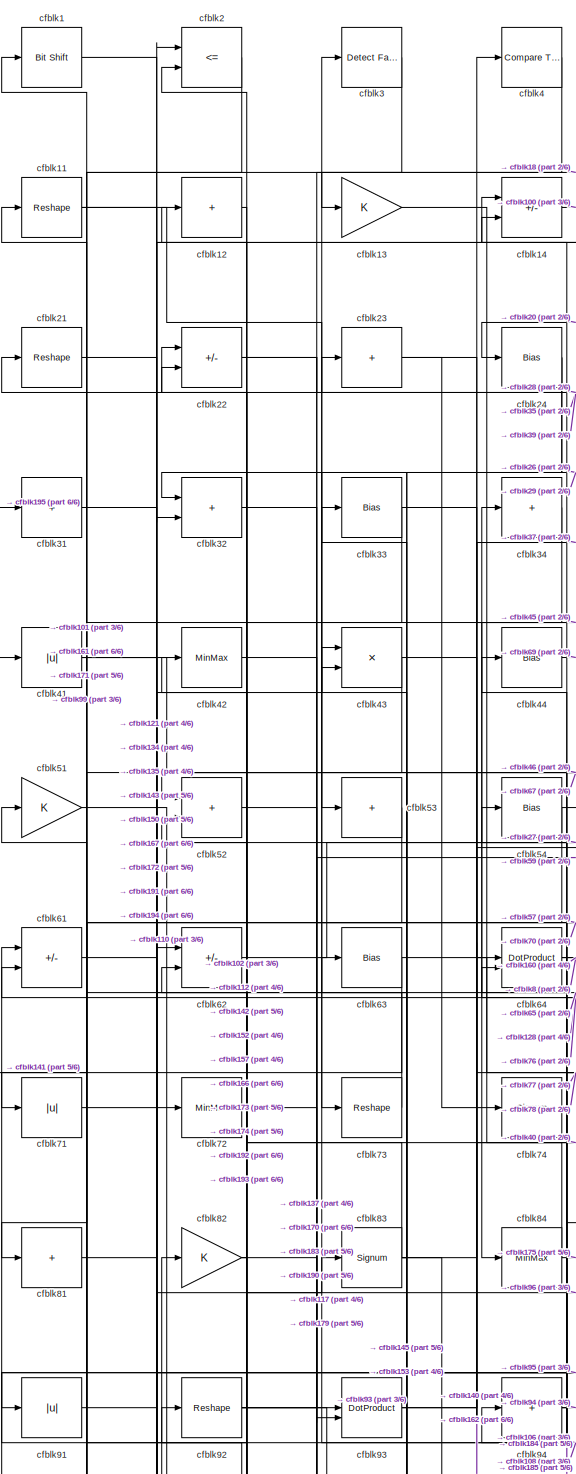
[diagram: root canvas - part 1/6, top left region]
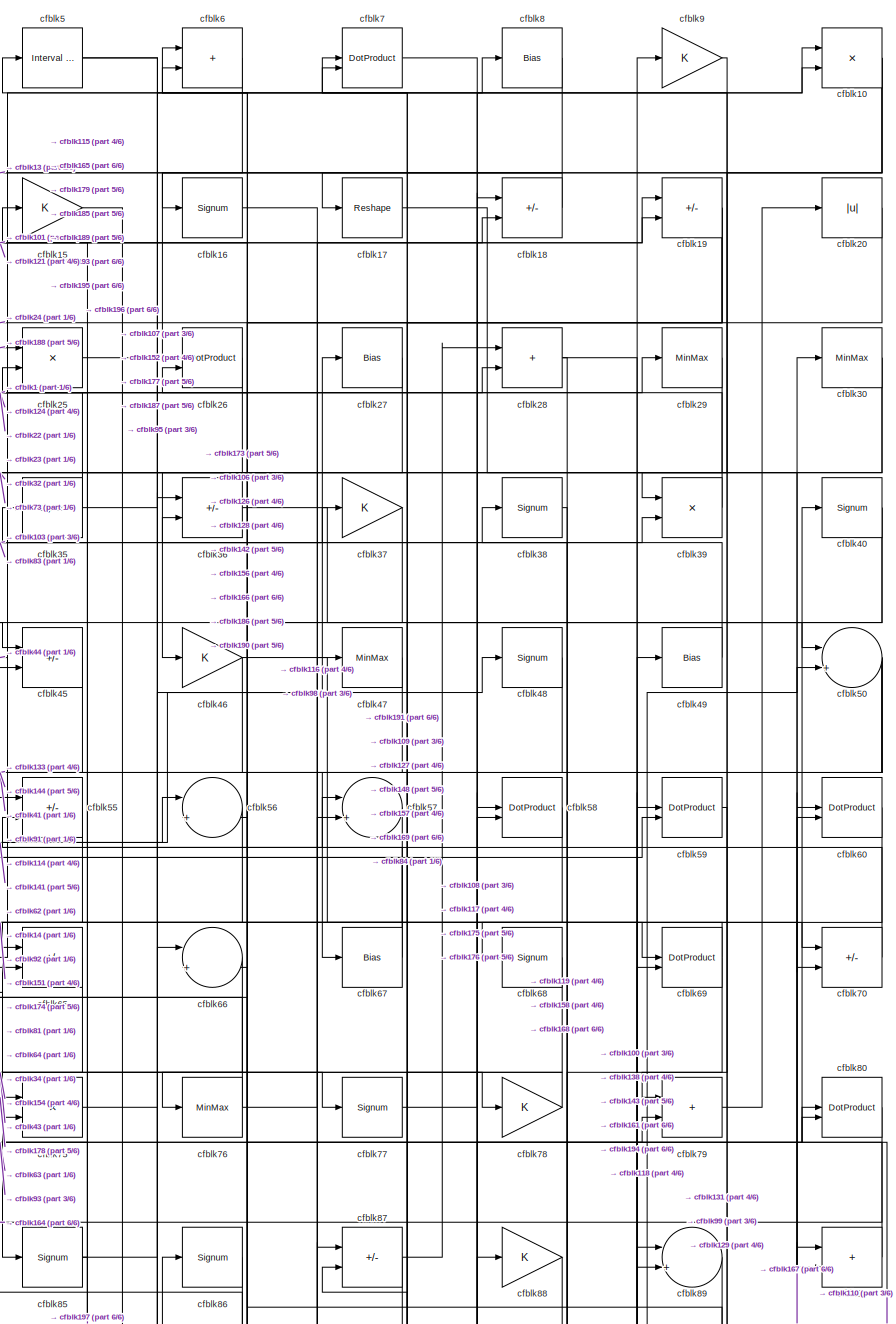
[diagram: root canvas - part 2/6, top right region]
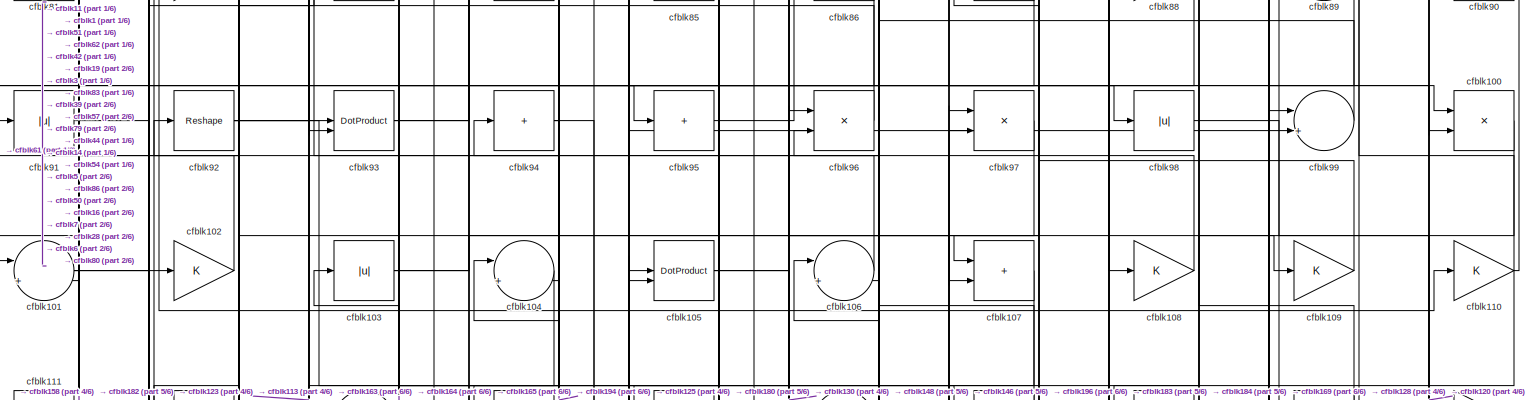
[diagram: root canvas - part 3/6, full width, middle band]
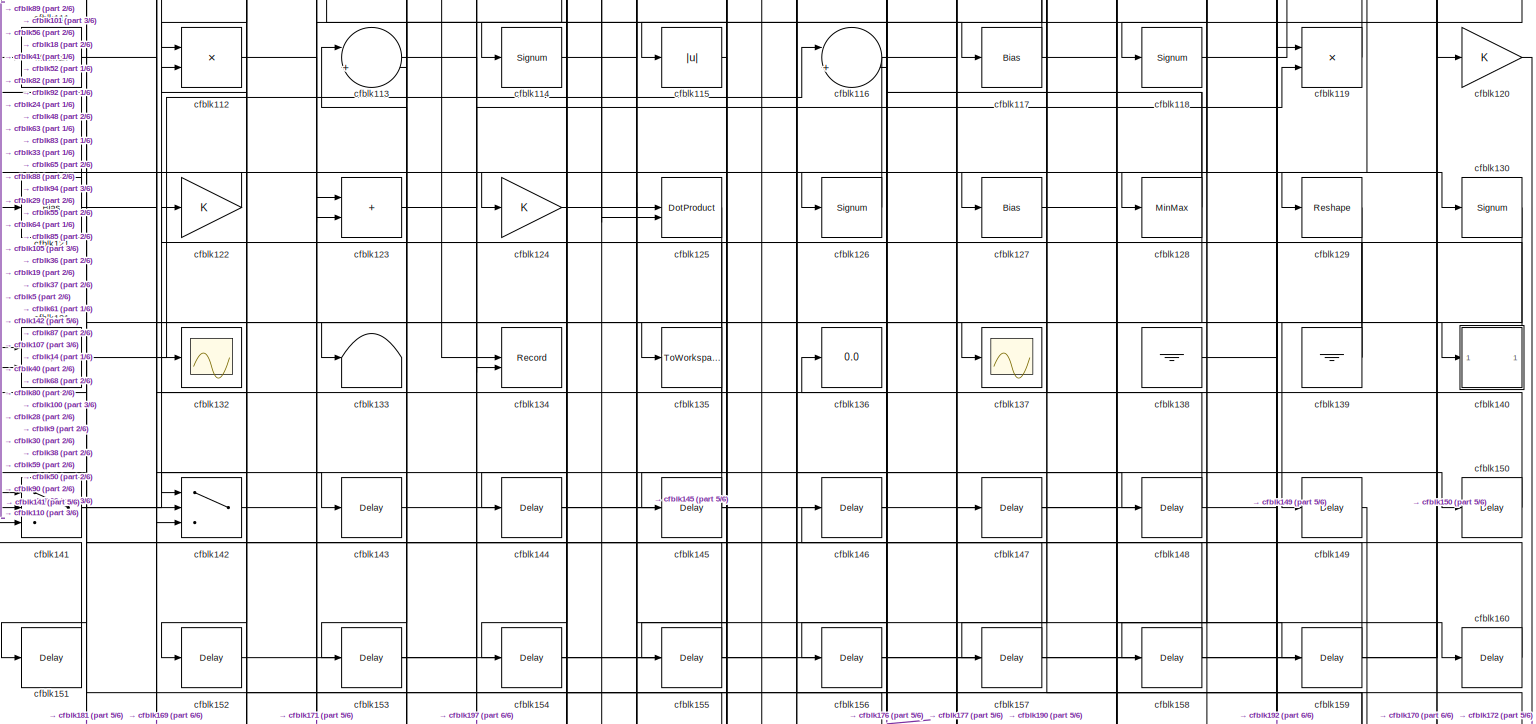
[diagram: root canvas - part 4/6, full width, bottom band]
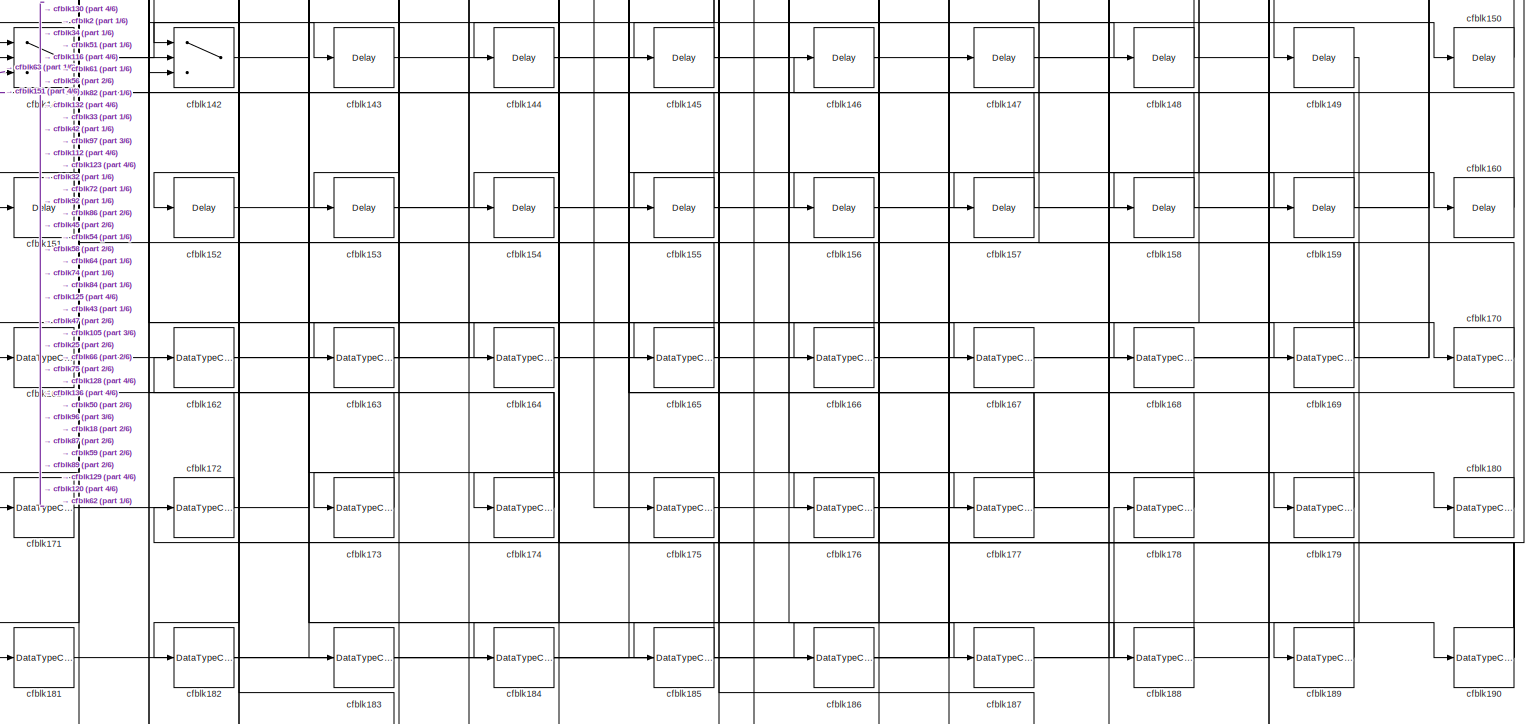
[diagram: root canvas - part 5/6, full width, bottom band]
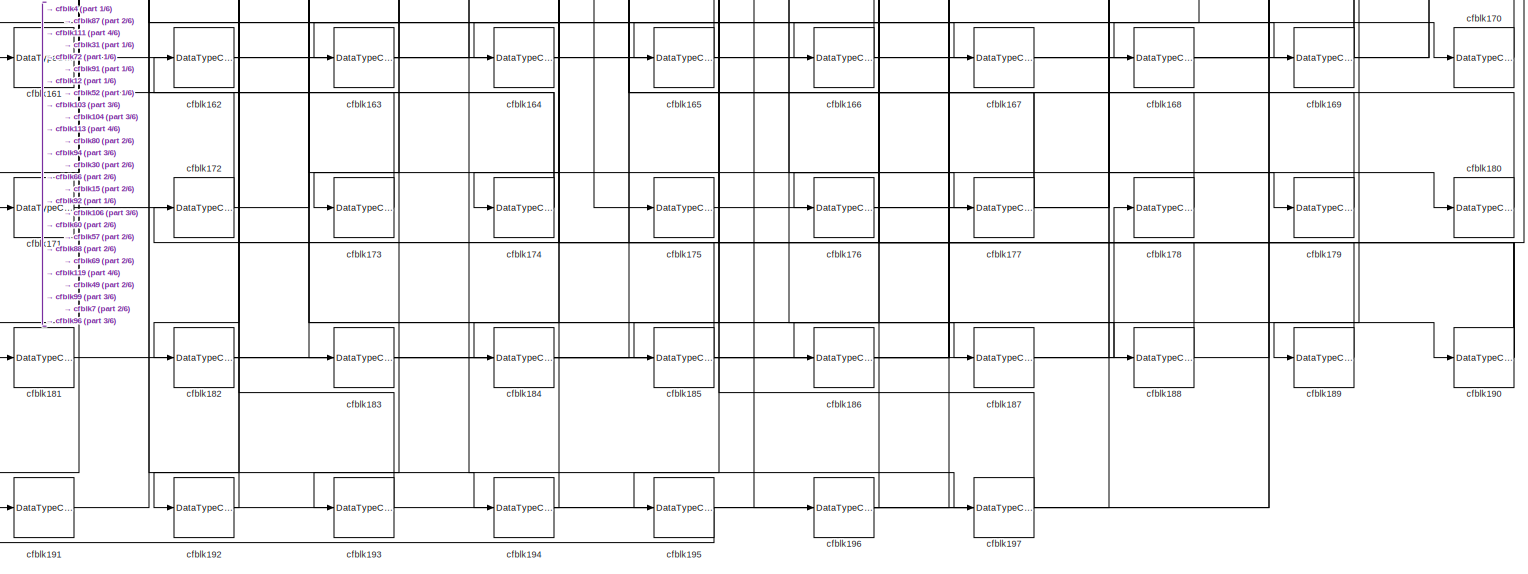
[diagram: root canvas - part 6/6, full width, bottom band]
MODEL slx_d920cc30b808
KIND model
CONFIG AbsTol = auto
CONFIG EnableMultiTasking = off
CONFIG FixedStep = auto
CONFIG MaxStep = auto
CONFIG MinStep = auto
CONFIG RelTol = 1e-3
CONFIG SampleTimeConstraint = Unconstrained
CONFIG SolverName = VariableStepAuto
CONFIG StartTime = 0.0
CONFIG StopTime = 10.0
BLOCK [Reference] cfblk1  REF=hdlsllib/Logic and Bit
Operations/Bit Shift
  SourceBlock = hdlsllib/Logic and Bit\nOperations/Bit Shift
  SourceType = Bit Shift
BLOCK [Product] cfblk10
  Inputs = */
  RndMeth = Zero
  SaturateOnIntegerOverflow = on
BLOCK [Product] cfblk100
  Inputs = */
  RndMeth = Zero
  SaturateOnIntegerOverflow = on
BLOCK [Sum] cfblk101
  Inputs = |++
BLOCK [Gain] cfblk102
BLOCK [Abs] cfblk103
  SaturateOnIntegerOverflow = off
BLOCK [Sum] cfblk104
  Inputs = |++
BLOCK [DotProduct] cfblk105
  OutDataTypeStr = Inherit: Inherit via internal rule
BLOCK [Sum] cfblk106
  Inputs = |++
BLOCK [Sum] cfblk107
  IconShape = rectangular
BLOCK [Gain] cfblk108
BLOCK [Gain] cfblk109
BLOCK [Reshape] cfblk11
BLOCK [Gain] cfblk110
BLOCK [MinMax] cfblk111
BLOCK [Product] cfblk112
  Inputs = */
  RndMeth = Zero
  SaturateOnIntegerOverflow = on
BLOCK [Sum] cfblk113
  Inputs = |++
BLOCK [Signum] cfblk114
BLOCK [Abs] cfblk115
  SaturateOnIntegerOverflow = off
BLOCK [Sum] cfblk116
  Inputs = |++
BLOCK [Bias] cfblk117
  Bias = 0.0
  SaturateOnIntegerOverflow = off
BLOCK [Signum] cfblk118
BLOCK [Product] cfblk119
  Inputs = */
  RndMeth = Zero
  SaturateOnIntegerOverflow = on
BLOCK [Sum] cfblk12
  IconShape = rectangular
  Inputs = +
BLOCK [Gain] cfblk120
BLOCK [Bias] cfblk121
  Bias = 0.0
  SaturateOnIntegerOverflow = off
BLOCK [Gain] cfblk122
BLOCK [Sum] cfblk123
  IconShape = rectangular
BLOCK [Gain] cfblk124
BLOCK [DotProduct] cfblk125
  OutDataTypeStr = Inherit: Inherit via internal rule
BLOCK [Signum] cfblk126
BLOCK [Bias] cfblk127
  Bias = 0.0
  SaturateOnIntegerOverflow = off
BLOCK [MinMax] cfblk128
BLOCK [Reshape] cfblk129
BLOCK [Gain] cfblk13
BLOCK [Signum] cfblk130
BLOCK [Sum] cfblk131
  IconShape = rectangular
  Inputs = +-
BLOCK [Scope] cfblk132
  Floating = off
  NumInputPorts = 1
  ScopeSpecificationString = Simulink.scopes.TimeScopeBlockCfg('CurrentConfiguration', extmgr.ConfigurationSet(extmgr.Configuration('Core','General UI',true),extmgr.Configuration('Core','Source UI',true),extmgr.Configuration('Sources','WiredSimulink',true,'DataLoggingVariableName','ScopeData2','DataLoggingSaveFormat','Array','DataLoggingLimitDataPoints',true,'DataLoggingDecimation','1'),extmgr.Configuration('Visuals','Time Do...<+868ch>
BLOCK [Terminator] cfblk133
BLOCK [Record] cfblk134
  CompatibilityTag = XY
  FileSettingsInternal = {"entries":[{"content":{"excelSettings":{"content":{},"type":"Streamout.ExcelSettings"}},"type":"Streamout.FileSettingStorage","uuid":""}],"packageUris":["http:\/\/schema.mathworks.com\/mf0\/streamout_blocks\/R2020a"],"version":"1.0"}
  Layout = [1 1]
  SignalsInternal = {"entries":[{"content":{"signals":[{"content":{"blockPath":[],"dimensions":[1],"domain":"","lineColor":"#a2142f","plots":[1],"port":1,"signalID":1710,"signalName":"XY Graph:1"},"type":"RecordBlkView.Signal","uuid":""},{"content":{"blockPath":[],"dimensions":[1],"domain":"","lineColor":"#139fff","plots":[1],"port":2,"signalID":1713,"signalName":"XY Graph:2"},"type":"RecordBlkView.Signal","uuid":""}...<+146ch>
  VisualizationBindings = {"xyplotplugin":{"info":[{"series":[{"bindingParametersList":[{"parameter":"X-Axis","signalID":1710,"signalName":"XY Graph:1"},{"parameter":"Y-Axis","signalID":1713,"signalName":"XY Graph:2"}],"seriesID":28745}],"subplotID":1}]}}
  st = -1
BLOCK [ToWorkspace] cfblk135
  MaxDataPoints = inf
  SampleTime = -1
  SaveFormat = Timeseries
  VariableName = simout
BLOCK [Display] cfblk136
  Decimation = 1
BLOCK [Scope] cfblk137
  Floating = off
  NumInputPorts = 1
  ScopeSpecificationString = Simulink.scopes.TimeScopeBlockCfg('CurrentConfiguration', extmgr.ConfigurationSet(extmgr.Configuration('Core','General UI',true),extmgr.Configuration('Core','Source UI',true),extmgr.Configuration('Sources','WiredSimulink',true,'DataLoggingVariableName','ScopeData2','DataLoggingSaveFormat','Array','DataLoggingLimitDataPoints',true,'DataLoggingDecimation','1'),extmgr.Configuration('Visuals','Time Do...<+868ch>
BLOCK [Ground] cfblk138
BLOCK [Ground] cfblk139
BLOCK [Sum] cfblk14
  IconShape = rectangular
  Inputs = +-
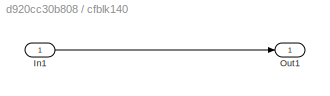
BLOCK [SubSystem] cfblk140
  LibrarySourceBlock = hdlsllib/Ports &\nSubsystems/Subsystem
BLOCK [Inport] cfblk140/In1
BLOCK [Outport] cfblk140/Out1
BLOCK [Switch] cfblk141
  InputSameDT = off
  SaturateOnIntegerOverflow = off
BLOCK [Switch] cfblk142
  InputSameDT = off
  SaturateOnIntegerOverflow = off
BLOCK [Delay] cfblk143
  InputPortMap = u0
  SampleTime = 1
BLOCK [Delay] cfblk144
  InputPortMap = u0
  SampleTime = 1
BLOCK [Delay] cfblk145
  InputPortMap = u0
  SampleTime = 1
BLOCK [Delay] cfblk146
  InputPortMap = u0
  SampleTime = 1
BLOCK [Delay] cfblk147
  InputPortMap = u0
  SampleTime = 1
BLOCK [Delay] cfblk148
  InputPortMap = u0
  SampleTime = 1
BLOCK [Delay] cfblk149
  InputPortMap = u0
  SampleTime = 1
BLOCK [Gain] cfblk15
BLOCK [Delay] cfblk150
  InputPortMap = u0
  SampleTime = 1
BLOCK [Delay] cfblk151
  InputPortMap = u0
  SampleTime = 1
BLOCK [Delay] cfblk152
  InputPortMap = u0
  SampleTime = 1
BLOCK [Delay] cfblk153
  InputPortMap = u0
  SampleTime = 1
BLOCK [Delay] cfblk154
  InputPortMap = u0
  SampleTime = 1
BLOCK [Delay] cfblk155
  InputPortMap = u0
  SampleTime = 1
BLOCK [Delay] cfblk156
  InputPortMap = u0
  SampleTime = 1
BLOCK [Delay] cfblk157
  InputPortMap = u0
  SampleTime = 1
BLOCK [Delay] cfblk158
  InputPortMap = u0
  SampleTime = 1
BLOCK [Delay] cfblk159
  InputPortMap = u0
  SampleTime = 1
BLOCK [Signum] cfblk16
BLOCK [Delay] cfblk160
  InputPortMap = u0
  SampleTime = 1
BLOCK [DataTypeConversion] cfblk161
  OutDataTypeStr = uint8
  RndMeth = Floor
  SaturateOnIntegerOverflow = off
BLOCK [DataTypeConversion] cfblk162
  OutDataTypeStr = uint8
  RndMeth = Floor
  SaturateOnIntegerOverflow = off
BLOCK [DataTypeConversion] cfblk163
  RndMeth = Floor
  SaturateOnIntegerOverflow = off
BLOCK [DataTypeConversion] cfblk164
  OutDataTypeStr = uint8
  RndMeth = Floor
  SaturateOnIntegerOverflow = off
BLOCK [DataTypeConversion] cfblk165
  OutDataTypeStr = uint8
  RndMeth = Floor
  SaturateOnIntegerOverflow = off
BLOCK [DataTypeConversion] cfblk166
  OutDataTypeStr = uint8
  RndMeth = Floor
  SaturateOnIntegerOverflow = off
BLOCK [DataTypeConversion] cfblk167
  OutDataTypeStr = uint8
  RndMeth = Floor
  SaturateOnIntegerOverflow = off
BLOCK [DataTypeConversion] cfblk168
  OutDataTypeStr = uint8
  RndMeth = Floor
  SaturateOnIntegerOverflow = off
BLOCK [DataTypeConversion] cfblk169
  RndMeth = Floor
  SaturateOnIntegerOverflow = off
BLOCK [Reshape] cfblk17
BLOCK [DataTypeConversion] cfblk170
  OutDataTypeStr = uint8
  RndMeth = Floor
  SaturateOnIntegerOverflow = off
BLOCK [DataTypeConversion] cfblk171
  OutDataTypeStr = uint8
  RndMeth = Floor
  SaturateOnIntegerOverflow = off
BLOCK [DataTypeConversion] cfblk172
  OutDataTypeStr = uint8
  RndMeth = Floor
  SaturateOnIntegerOverflow = off
BLOCK [DataTypeConversion] cfblk173
  OutDataTypeStr = uint8
  RndMeth = Floor
  SaturateOnIntegerOverflow = off
BLOCK [DataTypeConversion] cfblk174
  RndMeth = Floor
  SaturateOnIntegerOverflow = off
BLOCK [DataTypeConversion] cfblk175
  OutDataTypeStr = uint8
  RndMeth = Floor
  SaturateOnIntegerOverflow = off
BLOCK [DataTypeConversion] cfblk176
  OutDataTypeStr = uint8
  RndMeth = Floor
  SaturateOnIntegerOverflow = off
BLOCK [DataTypeConversion] cfblk177
  RndMeth = Floor
  SaturateOnIntegerOverflow = off
BLOCK [DataTypeConversion] cfblk178
  OutDataTypeStr = uint8
  RndMeth = Floor
  SaturateOnIntegerOverflow = off
BLOCK [DataTypeConversion] cfblk179
  OutDataTypeStr = uint8
  RndMeth = Floor
  SaturateOnIntegerOverflow = off
BLOCK [Sum] cfblk18
  IconShape = rectangular
  Inputs = +-
BLOCK [DataTypeConversion] cfblk180
  OutDataTypeStr = uint8
  RndMeth = Floor
  SaturateOnIntegerOverflow = off
BLOCK [DataTypeConversion] cfblk181
  OutDataTypeStr = uint8
  RndMeth = Floor
  SaturateOnIntegerOverflow = off
BLOCK [DataTypeConversion] cfblk182
  RndMeth = Floor
  SaturateOnIntegerOverflow = off
BLOCK [DataTypeConversion] cfblk183
  OutDataTypeStr = uint8
  RndMeth = Floor
  SaturateOnIntegerOverflow = off
BLOCK [DataTypeConversion] cfblk184
  OutDataTypeStr = uint8
  RndMeth = Floor
  SaturateOnIntegerOverflow = off
BLOCK [DataTypeConversion] cfblk185
  OutDataTypeStr = uint8
  RndMeth = Floor
  SaturateOnIntegerOverflow = off
BLOCK [DataTypeConversion] cfblk186
  OutDataTypeStr = uint8
  RndMeth = Floor
  SaturateOnIntegerOverflow = off
BLOCK [DataTypeConversion] cfblk187
  RndMeth = Floor
  SaturateOnIntegerOverflow = off
BLOCK [DataTypeConversion] cfblk188
  OutDataTypeStr = uint8
  RndMeth = Floor
  SaturateOnIntegerOverflow = off
BLOCK [DataTypeConversion] cfblk189
  OutDataTypeStr = uint8
  RndMeth = Floor
  SaturateOnIntegerOverflow = off
BLOCK [Sum] cfblk19
  IconShape = rectangular
  Inputs = +-
BLOCK [DataTypeConversion] cfblk190
  RndMeth = Floor
  SaturateOnIntegerOverflow = off
BLOCK [DataTypeConversion] cfblk191
  OutDataTypeStr = uint8
  RndMeth = Floor
  SaturateOnIntegerOverflow = off
BLOCK [DataTypeConversion] cfblk192
  RndMeth = Floor
  SaturateOnIntegerOverflow = off
BLOCK [DataTypeConversion] cfblk193
  OutDataTypeStr = uint8
  RndMeth = Floor
  SaturateOnIntegerOverflow = off
BLOCK [DataTypeConversion] cfblk194
  RndMeth = Floor
  SaturateOnIntegerOverflow = off
BLOCK [DataTypeConversion] cfblk195
  OutDataTypeStr = uint8
  RndMeth = Floor
  SaturateOnIntegerOverflow = off
BLOCK [DataTypeConversion] cfblk196
  RndMeth = Floor
  SaturateOnIntegerOverflow = off
BLOCK [DataTypeConversion] cfblk197
  OutDataTypeStr = uint8
  RndMeth = Floor
  SaturateOnIntegerOverflow = off
BLOCK [RelationalOperator] cfblk2
  InputSameDT = off
  Operator = <=
  OutDataTypeStr = boolean
BLOCK [Abs] cfblk20
  SaturateOnIntegerOverflow = off
BLOCK [Reshape] cfblk21
BLOCK [Sum] cfblk22
  IconShape = rectangular
  Inputs = +-
BLOCK [Sum] cfblk23
  IconShape = rectangular
  Inputs = +
BLOCK [Bias] cfblk24
  Bias = 0.0
  SaturateOnIntegerOverflow = off
BLOCK [Product] cfblk25
  Inputs = */
  RndMeth = Zero
  SaturateOnIntegerOverflow = on
BLOCK [DotProduct] cfblk26
  OutDataTypeStr = Inherit: Inherit via internal rule
BLOCK [Bias] cfblk27
  Bias = 0.0
  SaturateOnIntegerOverflow = off
BLOCK [Sum] cfblk28
  IconShape = rectangular
BLOCK [MinMax] cfblk29
BLOCK [Reference] cfblk3  REF=hdlsllib/Logic and Bit
Operations/Detect Fall
Nonpositive
  SourceBlock = hdlsllib/Logic and Bit\nOperations/Detect Fall\nNonpositive
  SourceType = Detect Fall Nonpositive
BLOCK [MinMax] cfblk30
BLOCK [Sum] cfblk31
  IconShape = rectangular
  Inputs = +
BLOCK [Sum] cfblk32
  IconShape = rectangular
BLOCK [Bias] cfblk33
  Bias = 0.0
  SaturateOnIntegerOverflow = off
BLOCK [Sum] cfblk34
  IconShape = rectangular
  Inputs = +
BLOCK [Signum] cfblk35
BLOCK [Sum] cfblk36
  IconShape = rectangular
  Inputs = +-
BLOCK [Gain] cfblk37
BLOCK [Signum] cfblk38
BLOCK [Product] cfblk39
  Inputs = */
  RndMeth = Zero
  SaturateOnIntegerOverflow = on
BLOCK [Reference] cfblk4  REF=hdlsllib/Logic and Bit
Operations/Compare
To Zero
  SourceBlock = hdlsllib/Logic and Bit\nOperations/Compare\nTo Zero
  SourceType = Compare To Zero
BLOCK [Signum] cfblk40
BLOCK [Abs] cfblk41
  SaturateOnIntegerOverflow = off
BLOCK [MinMax] cfblk42
BLOCK [Product] cfblk43
  Inputs = */
  RndMeth = Zero
  SaturateOnIntegerOverflow = on
BLOCK [Bias] cfblk44
  Bias = 0.0
  SaturateOnIntegerOverflow = off
BLOCK [Sum] cfblk45
  IconShape = rectangular
  Inputs = +-
BLOCK [Gain] cfblk46
BLOCK [MinMax] cfblk47
BLOCK [Signum] cfblk48
BLOCK [Bias] cfblk49
  Bias = 0.0
  SaturateOnIntegerOverflow = off
BLOCK [Reference] cfblk5  REF=hdlsllib/Logic and Bit
Operations/Interval Test
  SourceBlock = hdlsllib/Logic and Bit\nOperations/Interval Test
  SourceType = Interval Test
BLOCK [Sum] cfblk50
  Inputs = |++
BLOCK [Gain] cfblk51
BLOCK [Sum] cfblk52
  IconShape = rectangular
BLOCK [Sum] cfblk53
  IconShape = rectangular
  Inputs = +
BLOCK [Bias] cfblk54
  Bias = 0.0
  SaturateOnIntegerOverflow = off
BLOCK [Sum] cfblk55
  IconShape = rectangular
  Inputs = +-
BLOCK [Sum] cfblk56
  Inputs = |++
BLOCK [Sum] cfblk57
  Inputs = |++
BLOCK [DotProduct] cfblk58
  OutDataTypeStr = Inherit: Inherit via internal rule
BLOCK [DotProduct] cfblk59
  OutDataTypeStr = Inherit: Inherit via internal rule
BLOCK [Sum] cfblk6
  IconShape = rectangular
BLOCK [DotProduct] cfblk60
  OutDataTypeStr = Inherit: Inherit via internal rule
BLOCK [Sum] cfblk61
  IconShape = rectangular
  Inputs = +-
BLOCK [Sum] cfblk62
  IconShape = rectangular
  Inputs = +-
BLOCK [Bias] cfblk63
  Bias = 0.0
  SaturateOnIntegerOverflow = off
BLOCK [DotProduct] cfblk64
  OutDataTypeStr = Inherit: Inherit via internal rule
BLOCK [Sum] cfblk65
  IconShape = rectangular
  Inputs = +-
BLOCK [Sum] cfblk66
  Inputs = |++
BLOCK [Bias] cfblk67
  Bias = 0.0
  SaturateOnIntegerOverflow = off
BLOCK [Signum] cfblk68
BLOCK [DotProduct] cfblk69
  OutDataTypeStr = Inherit: Inherit via internal rule
BLOCK [DotProduct] cfblk7
  OutDataTypeStr = Inherit: Inherit via internal rule
BLOCK [Sum] cfblk70
  IconShape = rectangular
  Inputs = +-
BLOCK [Abs] cfblk71
  SaturateOnIntegerOverflow = off
BLOCK [MinMax] cfblk72
BLOCK [Reshape] cfblk73
BLOCK [Signum] cfblk74
BLOCK [Product] cfblk75
  Inputs = */
  RndMeth = Zero
  SaturateOnIntegerOverflow = on
BLOCK [MinMax] cfblk76
BLOCK [Signum] cfblk77
BLOCK [Gain] cfblk78
BLOCK [Sum] cfblk79
  IconShape = rectangular
BLOCK [Bias] cfblk8
  Bias = 0.0
  SaturateOnIntegerOverflow = off
BLOCK [DotProduct] cfblk80
  OutDataTypeStr = Inherit: Inherit via internal rule
BLOCK [Sum] cfblk81
  IconShape = rectangular
  Inputs = +
BLOCK [Gain] cfblk82
BLOCK [Signum] cfblk83
BLOCK [MinMax] cfblk84
BLOCK [Signum] cfblk85
BLOCK [Signum] cfblk86
BLOCK [Sum] cfblk87
  IconShape = rectangular
  Inputs = +-
BLOCK [Gain] cfblk88
BLOCK [Sum] cfblk89
  Inputs = |++
BLOCK [Gain] cfblk9
BLOCK [Sum] cfblk90
  IconShape = rectangular
BLOCK [Abs] cfblk91
  SaturateOnIntegerOverflow = off
BLOCK [Reshape] cfblk92
BLOCK [DotProduct] cfblk93
  OutDataTypeStr = Inherit: Inherit via internal rule
BLOCK [Sum] cfblk94
  IconShape = rectangular
  Inputs = +
BLOCK [Sum] cfblk95
  IconShape = rectangular
  Inputs = +
BLOCK [Product] cfblk96
  Inputs = */
  RndMeth = Zero
  SaturateOnIntegerOverflow = on
BLOCK [Product] cfblk97
  Inputs = */
  RndMeth = Zero
  SaturateOnIntegerOverflow = on
BLOCK [Abs] cfblk98
  SaturateOnIntegerOverflow = off
BLOCK [Sum] cfblk99
  Inputs = |++
LINE cfblk100:1 -> cfblk128:1
NET cfblk101:1 -> cfblk19:2, cfblk83:1
LINE cfblk102:1 -> cfblk11:1
NET cfblk103:1 -> cfblk109:1, cfblk39:2
LINE cfblk104:1 -> cfblk163:1
NET cfblk105:1 -> cfblk130:1, cfblk148:1
LINE cfblk106:1 -> cfblk3:1
LINE cfblk107:1 -> cfblk113:2
LINE cfblk108:1 -> cfblk61:1
LINE cfblk109:1 -> cfblk7:1
NET cfblk10:1 -> cfblk16:1, cfblk26:1, cfblk39:1
NET cfblk110:1 -> cfblk123:2, cfblk6:1, cfblk80:2
LINE cfblk111:1 -> cfblk169:1
LINE cfblk112:1 -> cfblk150:1
LINE cfblk113:1 -> cfblk197:1
LINE cfblk114:1 -> cfblk55:1
LINE cfblk115:1 -> cfblk155:1
NET cfblk116:1 -> cfblk142:3, cfblk87:1
NET cfblk117:1 -> cfblk14:1, cfblk80:1
LINE cfblk118:1 -> cfblk30:1
LINE cfblk119:1 -> cfblk38:1
NET cfblk11:1 -> cfblk53:1, cfblk95:1
LINE cfblk120:1 -> cfblk172:1
NET cfblk121:1 -> cfblk18:2, cfblk41:1
LINE cfblk122:1 -> cfblk121:1
LINE cfblk123:1 -> cfblk119:2
LINE cfblk124:1 -> cfblk29:1
LINE cfblk125:1 -> cfblk145:1
LINE cfblk126:1 -> cfblk124:1
LINE cfblk127:1 -> cfblk159:1
NET cfblk128:1 -> cfblk176:1, cfblk5:1, cfblk61:2
LINE cfblk129:1 -> cfblk149:1
LINE cfblk12:1 -> cfblk192:1
LINE cfblk130:1 -> cfblk181:1
LINE cfblk131:1 -> cfblk116:1
LINE cfblk138:1 -> cfblk9:1
NET cfblk139:1 -> cfblk112:2, cfblk122:1
LINE cfblk13:1 -> cfblk78:1
LINE cfblk140/In1:1 -> cfblk140/Out1:1
LINE cfblk140:1 -> cfblk63:1
NET cfblk141:1 -> cfblk56:1, cfblk82:1
LINE cfblk142:1 -> cfblk188:1
LINE cfblk143:1 -> cfblk89:1
LINE cfblk144:1 -> cfblk66:1
LINE cfblk145:1 -> cfblk43:2
LINE cfblk146:1 -> cfblk96:2
LINE cfblk147:1 -> cfblk180:1
LINE cfblk148:1 -> cfblk87:2
LINE cfblk149:1 -> cfblk189:1
LINE cfblk14:1 -> cfblk100:1
LINE cfblk150:1 -> cfblk62:1
LINE cfblk151:1 -> cfblk141:2
LINE cfblk152:1 -> cfblk36:1
LINE cfblk153:1 -> cfblk64:1
LINE cfblk154:1 -> cfblk90:1
LINE cfblk155:1 -> cfblk113:1
LINE cfblk156:1 -> cfblk50:2
LINE cfblk157:1 -> cfblk52:2
LINE cfblk158:1 -> cfblk101:2
LINE cfblk159:1 -> cfblk116:2
LINE cfblk15:1 -> cfblk196:1
LINE cfblk160:1 -> cfblk131:2
LINE cfblk161:1 -> cfblk49:1
LINE cfblk162:1 -> cfblk4:1
NET cfblk163:1 -> cfblk103:1, cfblk99:1
LINE cfblk164:1 -> cfblk104:1
LINE cfblk165:1 -> cfblk104:2
LINE cfblk166:1 -> cfblk92:1
LINE cfblk167:1 -> cfblk60:1
LINE cfblk168:1 -> cfblk60:2
NET cfblk169:1 -> cfblk7:2, cfblk96:1
LINE cfblk16:1 -> cfblk98:1
LINE cfblk170:1 -> cfblk111:1
LINE cfblk171:1 -> cfblk123:1
LINE cfblk172:1 -> cfblk2:1
LINE cfblk173:1 -> cfblk2:2
NET cfblk174:1 -> cfblk42:1, cfblk51:1
LINE cfblk175:1 -> cfblk58:1
LINE cfblk176:1 -> cfblk58:2
NET cfblk177:1 -> cfblk125:1, cfblk146:1
LINE cfblk178:1 -> cfblk75:1
LINE cfblk179:1 -> cfblk75:2
LINE cfblk17:1 -> cfblk90:2
LINE cfblk180:1 -> cfblk105:1
LINE cfblk181:1 -> cfblk147:1
NET cfblk182:1 -> cfblk105:2, cfblk178:1
LINE cfblk183:1 -> cfblk97:1
LINE cfblk184:1 -> cfblk97:2
LINE cfblk185:1 -> cfblk54:1
LINE cfblk186:1 -> cfblk47:1
NET cfblk187:1 -> cfblk18:1, cfblk59:1
LINE cfblk188:1 -> cfblk25:1
LINE cfblk189:1 -> cfblk25:2
LINE cfblk18:1 -> cfblk13:1
NET cfblk190:1 -> cfblk132:1, cfblk136:1, cfblk64:2, cfblk66:2
LINE cfblk191:1 -> cfblk72:1
NET cfblk192:1 -> cfblk119:1, cfblk162:1
LINE cfblk193:1 -> cfblk12:1
NET cfblk194:1 -> cfblk69:2, cfblk94:1
LINE cfblk195:1 -> cfblk31:1
NET cfblk196:1 -> cfblk106:1, cfblk57:2, cfblk88:1
LINE cfblk197:1 -> cfblk15:1
NET cfblk19:1 -> cfblk107:1, cfblk156:1, cfblk56:2
LINE cfblk1:1 -> cfblk102:1
LINE cfblk20:1 -> cfblk24:1
LINE cfblk21:1 -> cfblk32:2
NET cfblk22:1 -> cfblk28:2, cfblk70:1
NET cfblk23:1 -> cfblk45:1, cfblk74:1
NET cfblk24:1 -> cfblk152:1, cfblk153:1
LINE cfblk25:1 -> cfblk187:1
LINE cfblk26:1 -> cfblk32:1
LINE cfblk27:1 -> cfblk46:1
NET cfblk28:1 -> cfblk100:2, cfblk118:1
LINE cfblk29:1 -> cfblk73:1
LINE cfblk2:1 -> cfblk171:1
NET cfblk30:1 -> cfblk193:1, cfblk195:1
LINE cfblk31:1 -> cfblk194:1
LINE cfblk32:1 -> cfblk183:1
NET cfblk33:1 -> cfblk140:1, cfblk142:1
LINE cfblk34:1 -> cfblk141:1
NET cfblk35:1 -> cfblk10:2, cfblk1:1
LINE cfblk36:1 -> cfblk50:1
LINE cfblk37:1 -> cfblk126:1
LINE cfblk38:1 -> cfblk158:1
LINE cfblk39:1 -> cfblk23:1
LINE cfblk3:1 -> cfblk93:2
NET cfblk40:1 -> cfblk127:1, cfblk84:1
NET cfblk41:1 -> cfblk134:2, cfblk135:1, cfblk67:1
LINE cfblk42:1 -> cfblk93:1
NET cfblk43:1 -> cfblk52:1, cfblk77:1
LINE cfblk44:1 -> cfblk69:1
LINE cfblk45:1 -> cfblk144:1
NET cfblk46:1 -> cfblk89:2, cfblk91:1
LINE cfblk47:1 -> cfblk185:1
LINE cfblk48:1 -> cfblk133:1
LINE cfblk49:1 -> cfblk26:2
LINE cfblk4:1 -> cfblk161:1
NET cfblk50:1 -> cfblk106:2, cfblk142:2, cfblk186:1, cfblk65:2
LINE cfblk51:1 -> cfblk110:1
LINE cfblk52:1 -> cfblk170:1
LINE cfblk53:1 -> cfblk71:1
NET cfblk54:1 -> cfblk101:1, cfblk99:2
LINE cfblk55:1 -> cfblk85:1
LINE cfblk56:1 -> cfblk151:1
LINE cfblk57:1 -> cfblk81:1
LINE cfblk58:1 -> cfblk174:1
LINE cfblk59:1 -> cfblk129:1
NET cfblk5:1 -> cfblk107:2, cfblk70:2
LINE cfblk60:1 -> cfblk166:1
LINE cfblk61:1 -> cfblk143:1
LINE cfblk62:1 -> cfblk27:1
NET cfblk63:1 -> cfblk141:3, cfblk40:1
NET cfblk64:1 -> cfblk160:1, cfblk8:1
LINE cfblk65:1 -> cfblk154:1
LINE cfblk66:1 -> cfblk165:1
NET cfblk67:1 -> cfblk14:2, cfblk35:1
LINE cfblk68:1 -> cfblk157:1
NET cfblk69:1 -> cfblk168:1, cfblk68:1
LINE cfblk6:1 -> cfblk45:2
LINE cfblk70:1 -> cfblk55:2
LINE cfblk71:1 -> cfblk43:1
LINE cfblk72:1 -> cfblk190:1
LINE cfblk73:1 -> cfblk21:1
LINE cfblk74:1 -> cfblk184:1
LINE cfblk75:1 -> cfblk177:1
NET cfblk76:1 -> cfblk19:1, cfblk34:1
LINE cfblk77:1 -> cfblk10:1
LINE cfblk78:1 -> cfblk76:1
LINE cfblk79:1 -> cfblk20:1
LINE cfblk7:1 -> cfblk108:1
LINE cfblk80:1 -> cfblk164:1
LINE cfblk81:1 -> cfblk65:1
NET cfblk82:1 -> cfblk112:1, cfblk137:1
NET cfblk83:1 -> cfblk134:1, cfblk22:2, cfblk33:1, cfblk37:1
NET cfblk84:1 -> cfblk175:1, cfblk22:1
NET cfblk85:1 -> cfblk115:1, cfblk48:1
LINE cfblk86:1 -> cfblk173:1
NET cfblk87:1 -> cfblk191:1, cfblk28:1
LINE cfblk88:1 -> cfblk114:1
LINE cfblk89:1 -> cfblk131:1
LINE cfblk8:1 -> cfblk17:1
LINE cfblk90:1 -> cfblk36:2
LINE cfblk91:1 -> cfblk167:1
NET cfblk92:1 -> cfblk117:1, cfblk179:1, cfblk59:2
NET cfblk93:1 -> cfblk57:1, cfblk79:2
NET cfblk94:1 -> cfblk125:2, cfblk44:1
LINE cfblk95:1 -> cfblk86:1
LINE cfblk96:1 -> cfblk62:2
LINE cfblk97:1 -> cfblk182:1
LINE cfblk98:1 -> cfblk120:1
LINE cfblk99:1 -> cfblk6:2
LINE cfblk9:1 -> cfblk79:1
note: NET lines group one-source signal fan-out (src -> all destinations, sorted); 1:1 wires keep LINE
